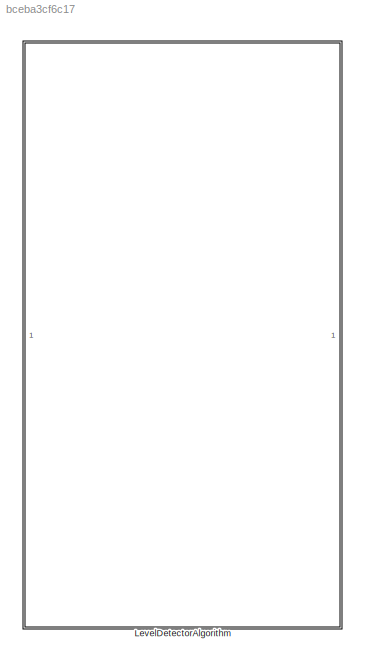
MODEL slx_bceba3cf6c17
KIND library
CONFIG AbsTol = auto
CONFIG EnableMultiTasking = off
CONFIG FixedStep = auto
CONFIG MaxStep = auto
CONFIG MinStep = auto
CONFIG RelTol = 1e-3
CONFIG SampleTimeConstraint = Unconstrained
CONFIG SolverName = VariableStepAuto
CONFIG StartTime = 0.0
CONFIG StopTime = 10.0
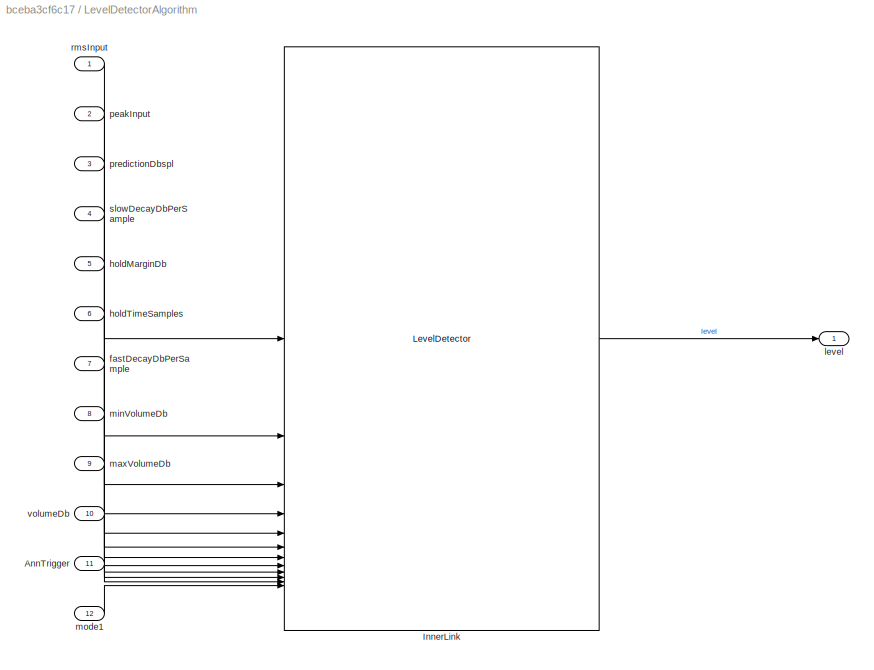
BLOCK [SubSystem] LevelDetectorAlgorithm
BLOCK [Inport] LevelDetectorAlgorithm/AnnTrigger
  Port = 11
BLOCK [Reference] LevelDetectorAlgorithm/InnerLink  REF=LevelDetectorLibBtc/LevelDetector
  SourceBlock = LevelDetectorLibBtc/LevelDetector
  SourceProductName = Bose Blocklib
  SourceType = Blocklib LevelDetector
BLOCK [Inport] LevelDetectorAlgorithm/fastDecayDbPerSample
  Port = 7
BLOCK [Inport] LevelDetectorAlgorithm/holdMarginDb
  Port = 5
BLOCK [Inport] LevelDetectorAlgorithm/holdTimeSamples
  Port = 6
BLOCK [Outport] LevelDetectorAlgorithm/level
BLOCK [Inport] LevelDetectorAlgorithm/maxVolumeDb
  Port = 9
BLOCK [Inport] LevelDetectorAlgorithm/minVolumeDb
  Port = 8
BLOCK [Inport] LevelDetectorAlgorithm/mode1
  Port = 12
BLOCK [Inport] LevelDetectorAlgorithm/peakInput
  Port = 2
BLOCK [Inport] LevelDetectorAlgorithm/predictionDbspl
  Port = 3
BLOCK [Inport] LevelDetectorAlgorithm/rmsInput
BLOCK [Inport] LevelDetectorAlgorithm/slowDecayDbPerSample
  Port = 4
BLOCK [Inport] LevelDetectorAlgorithm/volumeDb
  Port = 10
LINE LevelDetectorAlgorithm/AnnTrigger:1 -> LevelDetectorAlgorithm/InnerLink:11
LINE LevelDetectorAlgorithm/InnerLink:1 -> LevelDetectorAlgorithm/level:1
LINE LevelDetectorAlgorithm/fastDecayDbPerSample:1 -> LevelDetectorAlgorithm/InnerLink:7
LINE LevelDetectorAlgorithm/holdMarginDb:1 -> LevelDetectorAlgorithm/InnerLink:5
LINE LevelDetectorAlgorithm/holdTimeSamples:1 -> LevelDetectorAlgorithm/InnerLink:6
LINE LevelDetectorAlgorithm/maxVolumeDb:1 -> LevelDetectorAlgorithm/InnerLink:9
LINE LevelDetectorAlgorithm/minVolumeDb:1 -> LevelDetectorAlgorithm/InnerLink:8
LINE LevelDetectorAlgorithm/mode1:1 -> LevelDetectorAlgorithm/InnerLink:12
LINE LevelDetectorAlgorithm/peakInput:1 -> LevelDetectorAlgorithm/InnerLink:2
LINE LevelDetectorAlgorithm/predictionDbspl:1 -> LevelDetectorAlgorithm/InnerLink:3
LINE LevelDetectorAlgorithm/rmsInput:1 -> LevelDetectorAlgorithm/InnerLink:1
LINE LevelDetectorAlgorithm/slowDecayDbPerSample:1 -> LevelDetectorAlgorithm/InnerLink:4
LINE LevelDetectorAlgorithm/volumeDb:1 -> LevelDetectorAlgorithm/InnerLink:10
